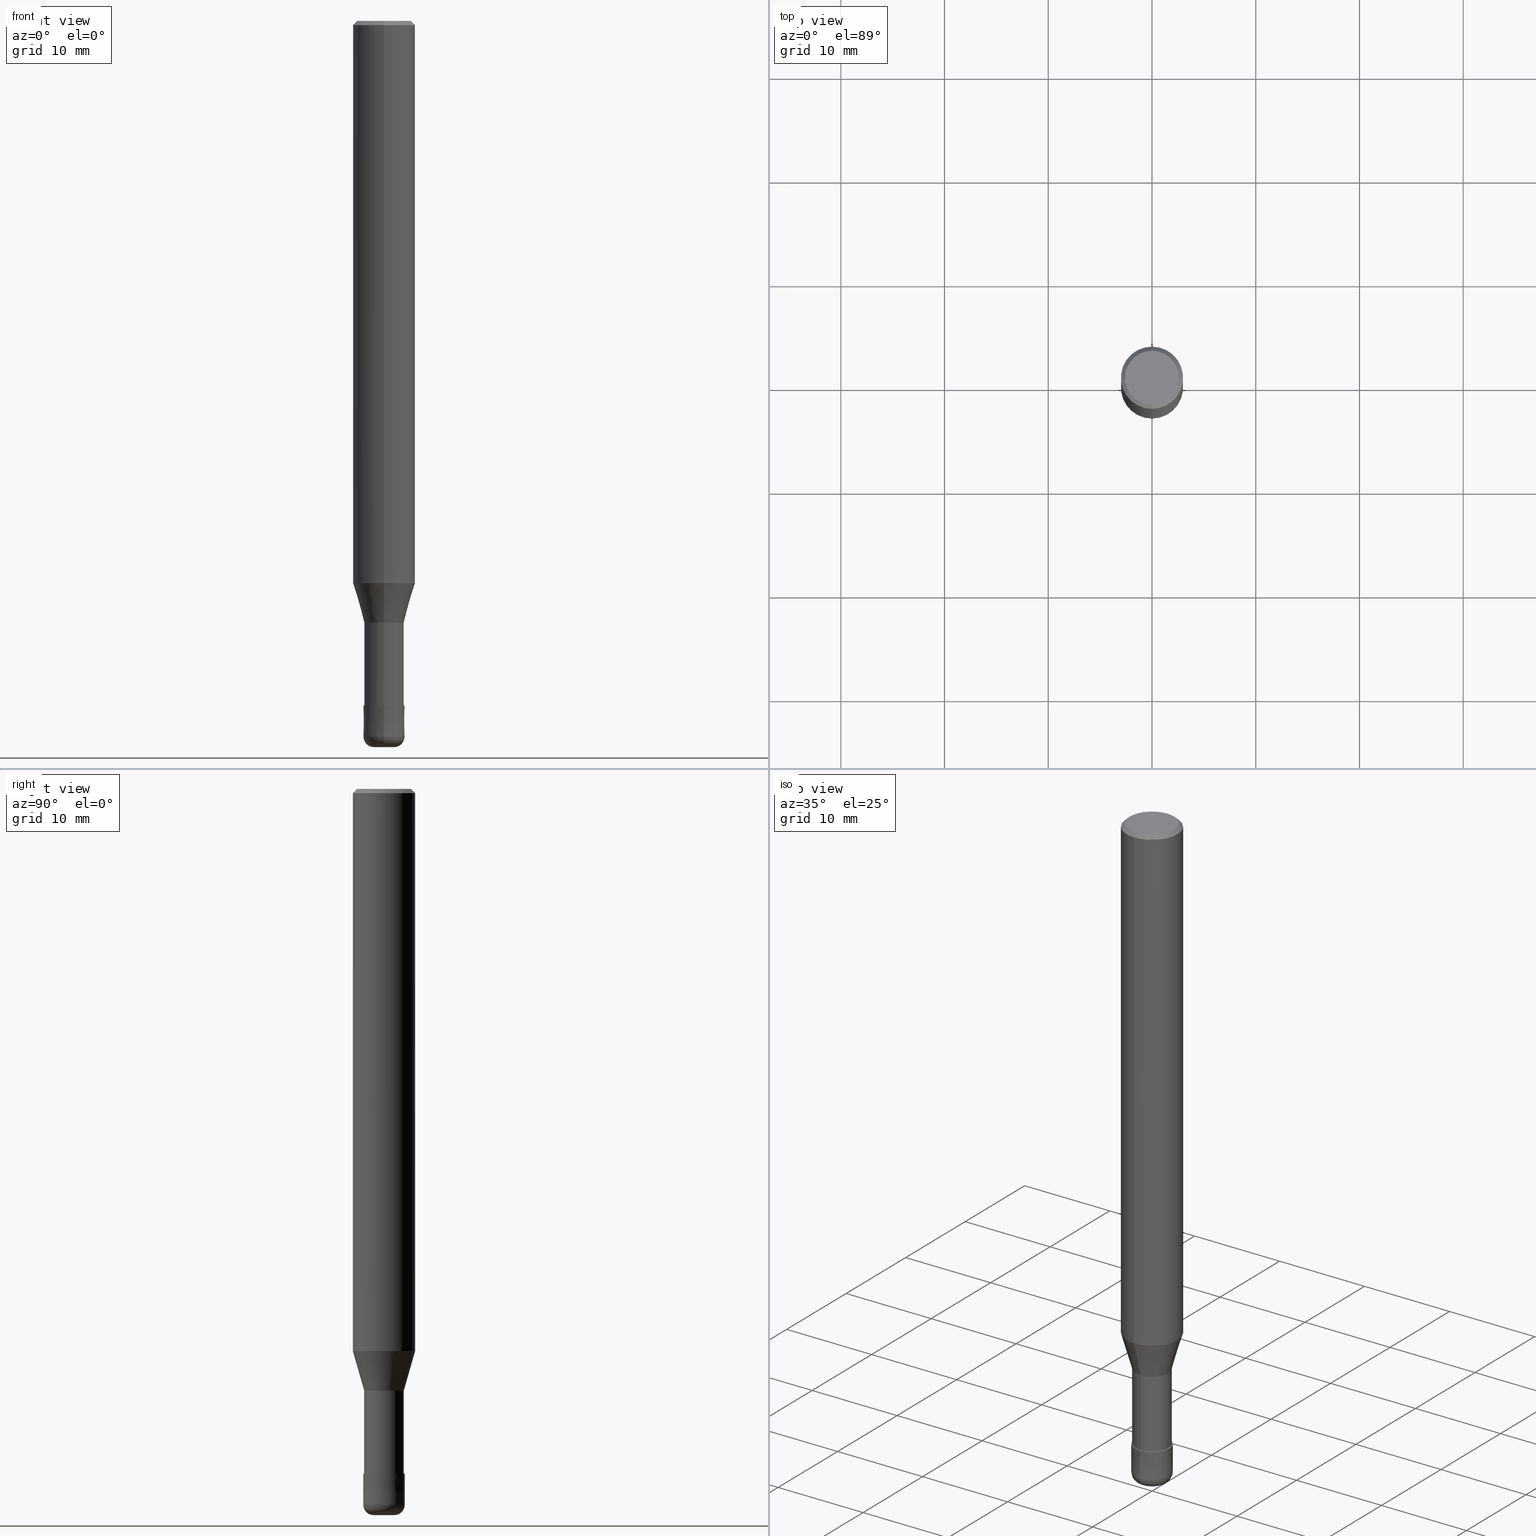
[diagram: canonical four-view strip — front | top / right | iso, engineering-drawing reading convention]
A machine part, canonical four-view strip (front | top / right | iso — engineering-drawing reading convention). The complete STEP part file that produces these views, byte-faithful:
ISO-10303-21;
HEADER;
FILE_DESCRIPTION(('no description'),'unknown implementation level');
FILE_NAME('CRRS4040-10-12-Huellk.stp','  ',('CIMSOURCE GmbH'),('CADClick - KiM GmbH - www.kimweb.de'),'unknown preprocess','ACIS','unknown authorization');
FILE_SCHEMA(('automotive_design'));
ENDSEC;
DATA;
#1=MECHANICAL_DESIGN_GEOMETRIC_PRESENTATION_REPRESENTATION(' ',(#14,#15,#16,#17,#18,#19,#20,#21,#22,#23,#24,#25,#26,#27,#28,#29,#30,#31,#32,#33,#34,#35,#36,#37,#38,#39,#40,#41,#42,#43,#44,#45,#46,#47,#48,#49,#50,#51,#52,#53,#54,#55,#56,#57,#58,#59,#60,#61,#62,#63,#64,#65,#66,#67,#68,#69,#70,#71,#72,#73,#74,#75,#76,#77,#78,#79,#80),#10);
#2=PRODUCT_DEFINITION_CONTEXT('',#81,'design');
#3=APPLICATION_PROTOCOL_DEFINITION('INTERNATIONAL STANDARD','automotive_design',1994,#81);
#4=PRODUCT_CATEGORY_RELATIONSHIP('NONE','NONE',#82,#83);
#5=SHAPE_DEFINITION_REPRESENTATION(#84,#85);
#6=PRODUCT_DEFINITION_CONTEXT('',#86,'design');
#7=APPLICATION_PROTOCOL_DEFINITION('INTERNATIONAL STANDARD','automotive_design',1994,#86);
#8=PRODUCT_CATEGORY_RELATIONSHIP('NONE','NONE',#87,#88);
#9=SHAPE_DEFINITION_REPRESENTATION(#89,#90);
#10= (GEOMETRIC_REPRESENTATION_CONTEXT(3)GLOBAL_UNCERTAINTY_ASSIGNED_CONTEXT((#93))GLOBAL_UNIT_ASSIGNED_CONTEXT((#95,#96,#97))REPRESENTATION_CONTEXT('NONE','WORKSPACE'));
#14=STYLED_ITEM('',(#99),#100);
#15=STYLED_ITEM('',(#101),#102);
#16=STYLED_ITEM('',(#103),#104);
#17=STYLED_ITEM('',(#105),#106);
#18=STYLED_ITEM('',(#107),#108);
#19=STYLED_ITEM('',(#109),#110);
#20=STYLED_ITEM('',(#111),#112);
#21=STYLED_ITEM('',(#113),#114);
#22=STYLED_ITEM('',(#115),#116);
#23=STYLED_ITEM('',(#117),#118);
#24=STYLED_ITEM('',(#119),#120);
#25=STYLED_ITEM('',(#121),#122);
#26=STYLED_ITEM('',(#123),#124);
#27=STYLED_ITEM('',(#125),#126);
#28=STYLED_ITEM('',(#127),#128);
#29=STYLED_ITEM('',(#129),#130);
#30=STYLED_ITEM('',(#131),#132);
#31=STYLED_ITEM('',(#133),#134);
#32=STYLED_ITEM('',(#135),#136);
#33=STYLED_ITEM('',(#137),#138);
#34=STYLED_ITEM('',(#139),#140);
#35=STYLED_ITEM('',(#141),#142);
#36=STYLED_ITEM('',(#143),#144);
#37=STYLED_ITEM('',(#145),#146);
#38=STYLED_ITEM('',(#147),#148);
#39=STYLED_ITEM('',(#149),#150);
#40=STYLED_ITEM('',(#151),#152);
#41=STYLED_ITEM('',(#153),#154);
#42=STYLED_ITEM('',(#155),#156);
#43=STYLED_ITEM('',(#157),#158);
#44=STYLED_ITEM('',(#159),#160);
#45=STYLED_ITEM('',(#161),#162);
#46=STYLED_ITEM('',(#163),#164);
#47=STYLED_ITEM('',(#165),#166);
#48=STYLED_ITEM('',(#167),#168);
#49=STYLED_ITEM('',(#169),#170);
#50=STYLED_ITEM('',(#171),#172);
#51=STYLED_ITEM('',(#173),#174);
#52=STYLED_ITEM('',(#175),#176);
#53=STYLED_ITEM('',(#177),#178);
#54=STYLED_ITEM('',(#179),#180);
#55=STYLED_ITEM('',(#181),#182);
#56=STYLED_ITEM('',(#183),#184);
#57=STYLED_ITEM('',(#185),#186);
#58=STYLED_ITEM('',(#187),#188);
#59=STYLED_ITEM('',(#189),#190);
#60=STYLED_ITEM('',(#191),#192);
#61=STYLED_ITEM('',(#193),#194);
#62=STYLED_ITEM('',(#195),#196);
#63=STYLED_ITEM('',(#197),#198);
#64=STYLED_ITEM('',(#199),#200);
#65=STYLED_ITEM('',(#201),#202);
#66=STYLED_ITEM('',(#203),#204);
#67=STYLED_ITEM('',(#205),#206);
#68=STYLED_ITEM('',(#207),#208);
#69=STYLED_ITEM('',(#209),#210);
#70=STYLED_ITEM('',(#211),#212);
#71=STYLED_ITEM('',(#213),#214);
#72=STYLED_ITEM('',(#215),#216);
#73=STYLED_ITEM('',(#217),#218);
#74=STYLED_ITEM('',(#219),#220);
#75=STYLED_ITEM('',(#221),#222);
#76=STYLED_ITEM('',(#223),#224);
#77=STYLED_ITEM('',(#225),#226);
#78=STYLED_ITEM('',(#227),#228);
#79=STYLED_ITEM('',(#229),#230);
#80=STYLED_ITEM('',(#231),#232);
#81=APPLICATION_CONTEXT(' ');
#82=PRODUCT_CATEGORY('part','NONE');
#83=PRODUCT_RELATED_PRODUCT_CATEGORY('detail',' ',(#233));
#84=PRODUCT_DEFINITION_SHAPE('NONE','NONE',#234);
#85=ADVANCED_BREP_SHAPE_REPRESENTATION('1',(#154,#235),#10);
#86=APPLICATION_CONTEXT(' ');
#87=PRODUCT_CATEGORY('part','NONE');
#88=PRODUCT_RELATED_PRODUCT_CATEGORY('detail',' ',(#236));
#89=PRODUCT_DEFINITION_SHAPE('NONE','NONE',#237);
#90=ADVANCED_BREP_SHAPE_REPRESENTATION('2',(#210,#238),#10);
#93=UNCERTAINTY_MEASURE_WITH_UNIT(LENGTH_MEASURE(1.0E-006),#95,'','');
#95= (CONVERSION_BASED_UNIT('MILLIMETRE',#241)LENGTH_UNIT()NAMED_UNIT(#244));
#96= (NAMED_UNIT(#246)PLANE_ANGLE_UNIT()SI_UNIT($,.RADIAN.));
#97= (NAMED_UNIT(#246)SOLID_ANGLE_UNIT()SI_UNIT($,.STERADIAN.));
#99=PRESENTATION_STYLE_ASSIGNMENT((#252));
#100=EDGE_CURVE('',#172,#140,#253,.T.);
#101=PRESENTATION_STYLE_ASSIGNMENT((#254));
#102=EDGE_CURVE('',#140,#152,#255,.T.);
#103=PRESENTATION_STYLE_ASSIGNMENT((#256));
#104=EDGE_CURVE('',#180,#214,#257,.T.);
#105=PRESENTATION_STYLE_ASSIGNMENT((#258));
#106=ADVANCED_FACE('',(#259),#260,.T.);
#107=PRESENTATION_STYLE_ASSIGNMENT((#261));
#108=ADVANCED_FACE('',(#262),#263,.T.);
#109=PRESENTATION_STYLE_ASSIGNMENT((#264));
#110=EDGE_CURVE('',#214,#180,#265,.T.);
#111=PRESENTATION_STYLE_ASSIGNMENT((#266));
#112=EDGE_CURVE('',#184,#226,#267,.T.);
#113=PRESENTATION_STYLE_ASSIGNMENT((#268));
#114=ADVANCED_FACE('',(#269),#270,.T.);
#115=PRESENTATION_STYLE_ASSIGNMENT((#271));
#116=VERTEX_POINT('',#272);
#117=PRESENTATION_STYLE_ASSIGNMENT((#273));
#118=EDGE_CURVE('',#158,#182,#274,.T.);
#119=PRESENTATION_STYLE_ASSIGNMENT((#275));
#120=EDGE_CURVE('',#126,#212,#276,.T.);
#121=PRESENTATION_STYLE_ASSIGNMENT((#277));
#122=ADVANCED_FACE('',(#278),#279,.T.);
#123=PRESENTATION_STYLE_ASSIGNMENT((#280));
#124=EDGE_CURVE('',#196,#214,#281,.T.);
#125=PRESENTATION_STYLE_ASSIGNMENT((#282));
#126=VERTEX_POINT('',#283);
#127=PRESENTATION_STYLE_ASSIGNMENT((#284));
#128=EDGE_CURVE('',#168,#134,#285,.T.);
#129=PRESENTATION_STYLE_ASSIGNMENT((#286));
#130=ADVANCED_FACE('',(#287),#288,.T.);
#131=PRESENTATION_STYLE_ASSIGNMENT((#289));
#132=EDGE_CURVE('',#126,#182,#290,.T.);
#133=PRESENTATION_STYLE_ASSIGNMENT((#291));
#134=VERTEX_POINT('',#292);
#135=PRESENTATION_STYLE_ASSIGNMENT((#293));
#136=EDGE_CURVE('',#158,#212,#294,.T.);
#137=PRESENTATION_STYLE_ASSIGNMENT((#295));
#138=ADVANCED_FACE('',(#296),#297,.T.);
#139=PRESENTATION_STYLE_ASSIGNMENT((#298));
#140=VERTEX_POINT('',#299);
#141=PRESENTATION_STYLE_ASSIGNMENT((#300));
#142=VERTEX_POINT('',#301);
#143=PRESENTATION_STYLE_ASSIGNMENT((#302));
#144=VERTEX_POINT('',#303);
#145=PRESENTATION_STYLE_ASSIGNMENT((#304));
#146=ADVANCED_FACE('',(#305),#306,.T.);
#147=PRESENTATION_STYLE_ASSIGNMENT((#307));
#148=EDGE_CURVE('',#212,#126,#308,.T.);
#149=PRESENTATION_STYLE_ASSIGNMENT((#309));
#150=EDGE_CURVE('',#142,#158,#310,.T.);
#151=PRESENTATION_STYLE_ASSIGNMENT((#311));
#152=VERTEX_POINT('',#312);
#153=PRESENTATION_STYLE_ASSIGNMENT((#313));
#154=MANIFOLD_SOLID_BREP('1',#314);
#155=PRESENTATION_STYLE_ASSIGNMENT((#315));
#156=EDGE_CURVE('',#180,#226,#316,.T.);
#157=PRESENTATION_STYLE_ASSIGNMENT((#317));
#158=VERTEX_POINT('',#318);
#159=PRESENTATION_STYLE_ASSIGNMENT((#319));
#160=EDGE_CURVE('',#230,#152,#320,.T.);
#161=PRESENTATION_STYLE_ASSIGNMENT((#321));
#162=EDGE_CURVE('',#134,#168,#322,.T.);
#163=PRESENTATION_STYLE_ASSIGNMENT((#323));
#164=ADVANCED_FACE('',(#324),#325,.T.);
#165=PRESENTATION_STYLE_ASSIGNMENT((#326));
#166=EDGE_CURVE('',#152,#168,#327,.T.);
#167=PRESENTATION_STYLE_ASSIGNMENT((#328));
#168=VERTEX_POINT('',#329);
#169=PRESENTATION_STYLE_ASSIGNMENT((#330));
#170=EDGE_CURVE('',#134,#230,#331,.T.);
#171=PRESENTATION_STYLE_ASSIGNMENT((#332));
#172=VERTEX_POINT('',#333);
#173=PRESENTATION_STYLE_ASSIGNMENT((#334));
#174=ADVANCED_FACE('',(#335),#336,.T.);
#175=PRESENTATION_STYLE_ASSIGNMENT((#337));
#176=ADVANCED_FACE('',(#338),#339,.T.);
#177=PRESENTATION_STYLE_ASSIGNMENT((#340));
#178=ADVANCED_FACE('',(#341),#342,.T.);
#179=PRESENTATION_STYLE_ASSIGNMENT((#343));
#180=VERTEX_POINT('',#344);
#181=PRESENTATION_STYLE_ASSIGNMENT((#345));
#182=VERTEX_POINT('',#346);
#183=PRESENTATION_STYLE_ASSIGNMENT((#347));
#184=VERTEX_POINT('',#348);
#185=PRESENTATION_STYLE_ASSIGNMENT((#349));
#186=EDGE_CURVE('',#196,#116,#350,.T.);
#187=PRESENTATION_STYLE_ASSIGNMENT((#351));
#188=ADVANCED_FACE('',(#352),#353,.T.);
#189=PRESENTATION_STYLE_ASSIGNMENT((#354));
#190=EDGE_CURVE('',#230,#172,#355,.T.);
#191=PRESENTATION_STYLE_ASSIGNMENT((#356));
#192=EDGE_CURVE('',#182,#158,#357,.T.);
#193=PRESENTATION_STYLE_ASSIGNMENT((#358));
#194=EDGE_CURVE('',#116,#196,#359,.T.);
#195=PRESENTATION_STYLE_ASSIGNMENT((#360));
#196=VERTEX_POINT('',#361);
#197=PRESENTATION_STYLE_ASSIGNMENT((#362));
#198=EDGE_CURVE('',#144,#142,#363,.T.);
#199=PRESENTATION_STYLE_ASSIGNMENT((#364));
#200=ADVANCED_FACE('',(#365),#366,.T.);
#201=PRESENTATION_STYLE_ASSIGNMENT((#367));
#202=ADVANCED_FACE('',(#368),#369,.T.);
#203=PRESENTATION_STYLE_ASSIGNMENT((#370));
#204=EDGE_CURVE('',#184,#214,#371,.T.);
#205=PRESENTATION_STYLE_ASSIGNMENT((#372));
#206=EDGE_CURVE('',#142,#144,#373,.T.);
#207=PRESENTATION_STYLE_ASSIGNMENT((#374));
#208=ADVANCED_FACE('',(#375),#376,.T.);
#209=PRESENTATION_STYLE_ASSIGNMENT((#377));
#210=MANIFOLD_SOLID_BREP('2',#378);
#211=PRESENTATION_STYLE_ASSIGNMENT((#379));
#212=VERTEX_POINT('',#380);
#213=PRESENTATION_STYLE_ASSIGNMENT((#381));
#214=VERTEX_POINT('',#382);
#215=PRESENTATION_STYLE_ASSIGNMENT((#383));
#216=EDGE_CURVE('',#226,#184,#384,.T.);
#217=PRESENTATION_STYLE_ASSIGNMENT((#385));
#218=ADVANCED_FACE('',(#386),#387,.T.);
#219=PRESENTATION_STYLE_ASSIGNMENT((#388));
#220=ADVANCED_FACE('',(#389,#390),#391,.T.);
#221=PRESENTATION_STYLE_ASSIGNMENT((#392));
#222=EDGE_CURVE('',#180,#116,#393,.T.);
#223=PRESENTATION_STYLE_ASSIGNMENT((#394));
#224=EDGE_CURVE('',#182,#144,#395,.T.);
#225=PRESENTATION_STYLE_ASSIGNMENT((#396));
#226=VERTEX_POINT('',#397);
#227=PRESENTATION_STYLE_ASSIGNMENT((#398));
#228=EDGE_CURVE('',#140,#172,#399,.T.);
#229=PRESENTATION_STYLE_ASSIGNMENT((#400));
#230=VERTEX_POINT('',#401);
#231=PRESENTATION_STYLE_ASSIGNMENT((#402));
#232=EDGE_CURVE('',#152,#230,#403,.T.);
#233=PRODUCT('1','1','PART-1-DESC',(#404));
#234=PRODUCT_DEFINITION('NONE','NONE',#405,#2);
#235=AXIS2_PLACEMENT_3D('',#406,#407,#408);
#236=PRODUCT('2','2','PART-2-DESC',(#409));
#237=PRODUCT_DEFINITION('NONE','NONE',#410,#6);
#238=AXIS2_PLACEMENT_3D('',#411,#412,#413);
#241=LENGTH_MEASURE_WITH_UNIT(LENGTH_MEASURE(1.0),#414);
#244=DIMENSIONAL_EXPONENTS(1.0,0.0,0.0,0.0,0.0,0.0,0.0);
#246=DIMENSIONAL_EXPONENTS(0.0,0.0,0.0,0.0,0.0,0.0,0.0);
#252=CURVE_STYLE('',#415,POSITIVE_LENGTH_MEASURE(1.0E-006),#416);
#253=CIRCLE('',#417,3.0);
#254=CURVE_STYLE('',#418,POSITIVE_LENGTH_MEASURE(1.0E-006),#419);
#255=LINE('',#420,#421);
#256=CURVE_STYLE('',#422,POSITIVE_LENGTH_MEASURE(1.0E-006),#423);
#257=CIRCLE('',#424,2.0);
#258=SURFACE_STYLE_USAGE(.BOTH.,#425);
#259=FACE_OUTER_BOUND('',#426,.T.);
#260=PLANE('',#427);
#261=SURFACE_STYLE_USAGE(.BOTH.,#428);
#262=FACE_OUTER_BOUND('',#429,.T.);
#263=CONICAL_SURFACE('',#430,1.99995,3.3333333320984E-005);
#264=CURVE_STYLE('',#431,POSITIVE_LENGTH_MEASURE(1.0E-006),#432);
#265=CIRCLE('',#433,2.0);
#266=CURVE_STYLE('',#434,POSITIVE_LENGTH_MEASURE(1.0E-006),#435);
#267=CIRCLE('',#436,1.9999);
#268=SURFACE_STYLE_USAGE(.BOTH.,#437);
#269=FACE_OUTER_BOUND('',#438,.T.);
#270=CONICAL_SURFACE('',#439,2.8,0.78539816339745);
#271=POINT_STYLE(' ',#440,POSITIVE_LENGTH_MEASURE(1.0E-006),#441);
#272=CARTESIAN_POINT('',(1.22460635382238E-016,-1.0,-70.0));
#273=CURVE_STYLE('',#442,POSITIVE_LENGTH_MEASURE(1.0E-006),#443);
#274=CIRCLE('',#444,1.90995);
#275=CURVE_STYLE('',#445,POSITIVE_LENGTH_MEASURE(1.0E-006),#446);
#276=CIRCLE('',#447,1.90995);
#277=SURFACE_STYLE_USAGE(.BOTH.,#448);
#278=FACE_OUTER_BOUND('',#449,.T.);
#279=PLANE('',#450);
#280=CURVE_STYLE('',#451,POSITIVE_LENGTH_MEASURE(1.0E-006),#452);
#281=CIRCLE('',#453,1.0);
#282=POINT_STYLE(' ',#454,POSITIVE_LENGTH_MEASURE(1.0E-006),#455);
#283=CARTESIAN_POINT('',(2.33893690548305E-016,-1.90995,-66.0));
#284=CURVE_STYLE('',#456,POSITIVE_LENGTH_MEASURE(1.0E-006),#457);
#285=CIRCLE('',#458,2.6);
#286=SURFACE_STYLE_USAGE(.BOTH.,#459);
#287=FACE_OUTER_BOUND('',#460,.T.);
#288=CYLINDRICAL_SURFACE('',#461,3.0);
#289=CURVE_STYLE('',#462,POSITIVE_LENGTH_MEASURE(1.0E-006),#463);
#290=LINE('',#464,#465);
#291=POINT_STYLE(' ',#466,POSITIVE_LENGTH_MEASURE(1.0E-006),#467);
#292=CARTESIAN_POINT('',(0.0,2.6,0.0));
#293=CURVE_STYLE('',#468,POSITIVE_LENGTH_MEASURE(1.0E-006),#469);
#294=LINE('',#470,#471);
#295=SURFACE_STYLE_USAGE(.BOTH.,#472);
#296=FACE_OUTER_BOUND('',#473,.T.);
#297=CONICAL_SURFACE('',#474,2.45495,0.279272319969089);
#298=POINT_STYLE(' ',#475,POSITIVE_LENGTH_MEASURE(1.0E-006),#476);
#299=CARTESIAN_POINT('',(3.67381906146713E-016,-3.0,-54.199));
#300=POINT_STYLE(' ',#477,POSITIVE_LENGTH_MEASURE(1.0E-006),#478);
#301=CARTESIAN_POINT('',(0.0,2.99995,-54.199));
#302=POINT_STYLE(' ',#479,POSITIVE_LENGTH_MEASURE(1.0E-006),#480);
#303=CARTESIAN_POINT('',(3.67375783114944E-016,-2.99995,-54.199));
#304=SURFACE_STYLE_USAGE(.BOTH.,#481);
#305=FACE_OUTER_BOUND('',#482,.T.);
#306=CYLINDRICAL_SURFACE('',#483,1.90995);
#307=CURVE_STYLE('',#484,POSITIVE_LENGTH_MEASURE(1.0E-006),#485);
#308=CIRCLE('',#486,1.90995);
#309=CURVE_STYLE('',#487,POSITIVE_LENGTH_MEASURE(1.0E-006),#488);
#310=LINE('',#489,#490);
#311=POINT_STYLE(' ',#491,POSITIVE_LENGTH_MEASURE(1.0E-006),#492);
#312=CARTESIAN_POINT('',(3.67381906146713E-016,-3.0,-0.399999999999999));
#313=SURFACE_STYLE_USAGE(.BOTH.,#493);
#314=CLOSED_SHELL('',(#146,#200,#164,#114,#220,#174,#188,#130,#138,#218,#176));
#315=CURVE_STYLE('',#494,POSITIVE_LENGTH_MEASURE(1.0E-006),#495);
#316=LINE('',#496,#497);
#317=POINT_STYLE(' ',#498,POSITIVE_LENGTH_MEASURE(1.0E-006),#499);
#318=CARTESIAN_POINT('',(0.0,1.90995,-58.0));
#319=CURVE_STYLE('',#500,POSITIVE_LENGTH_MEASURE(1.0E-006),#501);
#320=CIRCLE('',#502,3.0);
#321=CURVE_STYLE('',#503,POSITIVE_LENGTH_MEASURE(1.0E-006),#504);
#322=CIRCLE('',#505,2.6);
#323=SURFACE_STYLE_USAGE(.BOTH.,#506);
#324=FACE_OUTER_BOUND('',#507,.T.);
#325=CYLINDRICAL_SURFACE('',#508,3.0);
#326=CURVE_STYLE('',#509,POSITIVE_LENGTH_MEASURE(1.0E-006),#510);
#327=LINE('',#511,#512);
#328=POINT_STYLE(' ',#513,POSITIVE_LENGTH_MEASURE(1.0E-006),#514);
#329=CARTESIAN_POINT('',(3.18397651993818E-016,-2.6,0.0));
#330=CURVE_STYLE('',#515,POSITIVE_LENGTH_MEASURE(1.0E-006),#516);
#331=LINE('',#517,#518);
#332=POINT_STYLE(' ',#519,POSITIVE_LENGTH_MEASURE(1.0E-006),#520);
#333=CARTESIAN_POINT('',(0.0,3.0,-54.199));
#334=SURFACE_STYLE_USAGE(.BOTH.,#521);
#335=FACE_OUTER_BOUND('',#522,.T.);
#336=PLANE('',#523);
#337=SURFACE_STYLE_USAGE(.BOTH.,#524);
#338=FACE_OUTER_BOUND('',#525,.T.);
#339=PLANE('',#526);
#340=SURFACE_STYLE_USAGE(.BOTH.,#527);
#341=FACE_OUTER_BOUND('',#528,.T.);
#342=TOROIDAL_SURFACE('',#529,0.999999999999999,1.0);
#343=POINT_STYLE(' ',#530,POSITIVE_LENGTH_MEASURE(1.0E-006),#531);
#344=CARTESIAN_POINT('',(2.44921270764475E-016,-2.0,-69.0));
#345=POINT_STYLE(' ',#532,POSITIVE_LENGTH_MEASURE(1.0E-006),#533);
#346=CARTESIAN_POINT('',(2.33893690548305E-016,-1.90995,-58.0));
#347=POINT_STYLE(' ',#534,POSITIVE_LENGTH_MEASURE(1.0E-006),#535);
#348=CARTESIAN_POINT('',(0.0,1.9999,-66.0));
#349=CURVE_STYLE('',#536,POSITIVE_LENGTH_MEASURE(1.0E-006),#537);
#350=CIRCLE('',#538,1.0);
#351=SURFACE_STYLE_USAGE(.BOTH.,#539);
#352=FACE_OUTER_BOUND('',#540,.T.);
#353=CONICAL_SURFACE('',#541,2.8,0.78539816339745);
#354=CURVE_STYLE('',#542,POSITIVE_LENGTH_MEASURE(1.0E-006),#543);
#355=LINE('',#544,#545);
#356=CURVE_STYLE('',#546,POSITIVE_LENGTH_MEASURE(1.0E-006),#547);
#357=CIRCLE('',#548,1.90995);
#358=CURVE_STYLE('',#549,POSITIVE_LENGTH_MEASURE(1.0E-006),#550);
#359=CIRCLE('',#551,1.0);
#360=POINT_STYLE(' ',#552,POSITIVE_LENGTH_MEASURE(1.0E-006),#553);
#361=CARTESIAN_POINT('',(0.0,1.0,-70.0));
#362=CURVE_STYLE('',#554,POSITIVE_LENGTH_MEASURE(1.0E-006),#555);
#363=CIRCLE('',#556,2.99995);
#364=SURFACE_STYLE_USAGE(.BOTH.,#557);
#365=FACE_OUTER_BOUND('',#558,.T.);
#366=CONICAL_SURFACE('',#559,2.45495,0.279272319969089);
#367=SURFACE_STYLE_USAGE(.BOTH.,#560);
#368=FACE_OUTER_BOUND('',#561,.T.);
#369=TOROIDAL_SURFACE('',#562,0.999999999999999,1.0);
#370=CURVE_STYLE('',#563,POSITIVE_LENGTH_MEASURE(1.0E-006),#564);
#371=LINE('',#565,#566);
#372=CURVE_STYLE('',#567,POSITIVE_LENGTH_MEASURE(1.0E-006),#568);
#373=CIRCLE('',#569,2.99995);
#374=SURFACE_STYLE_USAGE(.BOTH.,#570);
#375=FACE_OUTER_BOUND('',#571,.T.);
#376=CONICAL_SURFACE('',#572,1.99995,3.3333333320984E-005);
#377=SURFACE_STYLE_USAGE(.BOTH.,#573);
#378=CLOSED_SHELL('',(#178,#108,#106,#208,#202,#122));
#379=POINT_STYLE(' ',#574,POSITIVE_LENGTH_MEASURE(1.0E-006),#575);
#380=CARTESIAN_POINT('',(0.0,1.90995,-66.0));
#381=POINT_STYLE(' ',#576,POSITIVE_LENGTH_MEASURE(1.0E-006),#577);
#382=CARTESIAN_POINT('',(0.0,2.0,-69.0));
#383=CURVE_STYLE('',#578,POSITIVE_LENGTH_MEASURE(1.0E-006),#579);
#384=CIRCLE('',#580,1.9999);
#385=SURFACE_STYLE_USAGE(.BOTH.,#581);
#386=FACE_OUTER_BOUND('',#582,.T.);
#387=CYLINDRICAL_SURFACE('',#583,1.90995);
#388=SURFACE_STYLE_USAGE(.BOTH.,#584);
#389=FACE_OUTER_BOUND('',#585,.T.);
#390=FACE_BOUND('',#586,.T.);
#391=PLANE('',#587);
#392=CURVE_STYLE('',#588,POSITIVE_LENGTH_MEASURE(1.0E-006),#589);
#393=CIRCLE('',#590,1.0);
#394=CURVE_STYLE('',#591,POSITIVE_LENGTH_MEASURE(1.0E-006),#592);
#395=LINE('',#593,#594);
#396=POINT_STYLE(' ',#595,POSITIVE_LENGTH_MEASURE(1.0E-006),#596);
#397=CARTESIAN_POINT('',(2.44909024700937E-016,-1.9999,-66.0));
#398=CURVE_STYLE('',#597,POSITIVE_LENGTH_MEASURE(1.0E-006),#598);
#399=CIRCLE('',#599,3.0);
#400=POINT_STYLE(' ',#600,POSITIVE_LENGTH_MEASURE(1.0E-006),#601);
#401=CARTESIAN_POINT('',(0.0,3.0,-0.399999999999999));
#402=CURVE_STYLE('',#602,POSITIVE_LENGTH_MEASURE(1.0E-006),#603);
#403=CIRCLE('',#604,3.0);
#404=PRODUCT_CONTEXT('',#81,'mechanical');
#405=PRODUCT_DEFINITION_FORMATION_WITH_SPECIFIED_SOURCE(' ','NONE',#233,.NOT_KNOWN.);
#406=CARTESIAN_POINT('',(0.0,0.0,0.0));
#407=DIRECTION('',(0.0,0.0,1.0));
#408=DIRECTION('',(1.0,0.0,0.0));
#409=PRODUCT_CONTEXT('',#86,'mechanical');
#410=PRODUCT_DEFINITION_FORMATION_WITH_SPECIFIED_SOURCE(' ','NONE',#236,.NOT_KNOWN.);
#411=CARTESIAN_POINT('',(0.0,0.0,0.0));
#412=DIRECTION('',(0.0,0.0,1.0));
#413=DIRECTION('',(1.0,0.0,0.0));
#414= (NAMED_UNIT(#244)LENGTH_UNIT()SI_UNIT(.MILLI.,.METRE.));
#415=DRAUGHTING_PRE_DEFINED_CURVE_FONT('continuous');
#416=COLOUR_RGB('',0.498039215803146,0.498039215803146,0.498039215803146);
#417=AXIS2_PLACEMENT_3D('',#606,#607,#608);
#418=DRAUGHTING_PRE_DEFINED_CURVE_FONT('continuous');
#419=COLOUR_RGB('',0.498039215803146,0.498039215803146,0.498039215803146);
#420=CARTESIAN_POINT('',(3.67381906146713E-016,-3.0,-27.2995));
#421=VECTOR('',#609,1.0);
#422=DRAUGHTING_PRE_DEFINED_CURVE_FONT('continuous');
#423=COLOUR_RGB('',0.800000011920929,0.800000011920929,0.800000011920929);
#424=AXIS2_PLACEMENT_3D('',#610,#611,#612);
#425=SURFACE_SIDE_STYLE('',(#613));
#426=EDGE_LOOP('',(#614,#615));
#427=AXIS2_PLACEMENT_3D('',#616,#617,#618);
#428=SURFACE_SIDE_STYLE('',(#619));
#429=EDGE_LOOP('',(#620,#621,#622,#623));
#430=AXIS2_PLACEMENT_3D('',#624,#625,#626);
#431=DRAUGHTING_PRE_DEFINED_CURVE_FONT('continuous');
#432=COLOUR_RGB('',0.800000011920929,0.800000011920929,0.800000011920929);
#433=AXIS2_PLACEMENT_3D('',#627,#628,#629);
#434=DRAUGHTING_PRE_DEFINED_CURVE_FONT('continuous');
#435=COLOUR_RGB('',0.800000011920929,0.800000011920929,0.800000011920929);
#436=AXIS2_PLACEMENT_3D('',#630,#631,#632);
#437=SURFACE_SIDE_STYLE('',(#633));
#438=EDGE_LOOP('',(#634,#635,#636,#637));
#439=AXIS2_PLACEMENT_3D('',#638,#639,#640);
#440=PRE_DEFINED_MARKER('');
#441=COLOUR_RGB('',0.800000011920929,0.800000011920929,0.800000011920929);
#442=DRAUGHTING_PRE_DEFINED_CURVE_FONT('continuous');
#443=COLOUR_RGB('',0.498039215803146,0.498039215803146,0.498039215803146);
#444=AXIS2_PLACEMENT_3D('',#641,#642,#643);
#445=DRAUGHTING_PRE_DEFINED_CURVE_FONT('continuous');
#446=COLOUR_RGB('',0.498039215803146,0.498039215803146,0.498039215803146);
#447=AXIS2_PLACEMENT_3D('',#644,#645,#646);
#448=SURFACE_SIDE_STYLE('',(#647));
#449=EDGE_LOOP('',(#648,#649));
#450=AXIS2_PLACEMENT_3D('',#650,#651,#652);
#451=DRAUGHTING_PRE_DEFINED_CURVE_FONT('continuous');
#452=COLOUR_RGB('',0.800000011920929,0.800000011920929,0.800000011920929);
#453=AXIS2_PLACEMENT_3D('',#653,#654,#655);
#454=PRE_DEFINED_MARKER('');
#455=COLOUR_RGB('',0.498039215803146,0.498039215803146,0.498039215803146);
#456=DRAUGHTING_PRE_DEFINED_CURVE_FONT('continuous');
#457=COLOUR_RGB('',0.498039215803146,0.498039215803146,0.498039215803146);
#458=AXIS2_PLACEMENT_3D('',#656,#657,#658);
#459=SURFACE_SIDE_STYLE('',(#659));
#460=EDGE_LOOP('',(#660,#661,#662,#663));
#461=AXIS2_PLACEMENT_3D('',#664,#665,#666);
#462=DRAUGHTING_PRE_DEFINED_CURVE_FONT('continuous');
#463=COLOUR_RGB('',0.498039215803146,0.498039215803146,0.498039215803146);
#464=CARTESIAN_POINT('',(2.33893690548305E-016,-1.90995,-62.0));
#465=VECTOR('',#667,1.0);
#466=PRE_DEFINED_MARKER('');
#467=COLOUR_RGB('',0.498039215803146,0.498039215803146,0.498039215803146);
#468=DRAUGHTING_PRE_DEFINED_CURVE_FONT('continuous');
#469=COLOUR_RGB('',0.498039215803146,0.498039215803146,0.498039215803146);
#470=CARTESIAN_POINT('',(-2.33893690548305E-016,1.90995,-62.0));
#471=VECTOR('',#668,1.0);
#472=SURFACE_SIDE_STYLE('',(#669));
#473=EDGE_LOOP('',(#670,#671,#672,#673));
#474=AXIS2_PLACEMENT_3D('',#674,#675,#676);
#475=PRE_DEFINED_MARKER('');
#476=COLOUR_RGB('',0.498039215803146,0.498039215803146,0.498039215803146);
#477=PRE_DEFINED_MARKER('');
#478=COLOUR_RGB('',0.498039215803146,0.498039215803146,0.498039215803146);
#479=PRE_DEFINED_MARKER('');
#480=COLOUR_RGB('',0.498039215803146,0.498039215803146,0.498039215803146);
#481=SURFACE_SIDE_STYLE('',(#677));
#482=EDGE_LOOP('',(#678,#679,#680,#681));
#483=AXIS2_PLACEMENT_3D('',#682,#683,#684);
#484=DRAUGHTING_PRE_DEFINED_CURVE_FONT('continuous');
#485=COLOUR_RGB('',0.498039215803146,0.498039215803146,0.498039215803146);
#486=AXIS2_PLACEMENT_3D('',#685,#686,#687);
#487=DRAUGHTING_PRE_DEFINED_CURVE_FONT('continuous');
#488=COLOUR_RGB('',0.498039215803146,0.498039215803146,0.498039215803146);
#489=CARTESIAN_POINT('',(-3.00634736831625E-016,2.45495,-56.0995));
#490=VECTOR('',#688,1.0);
#491=PRE_DEFINED_MARKER('');
#492=COLOUR_RGB('',0.498039215803146,0.498039215803146,0.498039215803146);
#493=SURFACE_SIDE_STYLE('',(#689));
#494=DRAUGHTING_PRE_DEFINED_CURVE_FONT('continuous');
#495=COLOUR_RGB('',0.800000011920929,0.800000011920929,0.800000011920929);
#496=CARTESIAN_POINT('',(2.44915147732706E-016,-1.99995,-67.5));
#497=VECTOR('',#690,1.0);
#498=PRE_DEFINED_MARKER('');
#499=COLOUR_RGB('',0.498039215803146,0.498039215803146,0.498039215803146);
#500=DRAUGHTING_PRE_DEFINED_CURVE_FONT('continuous');
#501=COLOUR_RGB('',0.498039215803146,0.498039215803146,0.498039215803146);
#502=AXIS2_PLACEMENT_3D('',#691,#692,#693);
#503=DRAUGHTING_PRE_DEFINED_CURVE_FONT('continuous');
#504=COLOUR_RGB('',0.498039215803146,0.498039215803146,0.498039215803146);
#505=AXIS2_PLACEMENT_3D('',#694,#695,#696);
#506=SURFACE_SIDE_STYLE('',(#697));
#507=EDGE_LOOP('',(#698,#699,#700,#701));
#508=AXIS2_PLACEMENT_3D('',#702,#703,#704);
#509=DRAUGHTING_PRE_DEFINED_CURVE_FONT('continuous');
#510=COLOUR_RGB('',0.498039215803146,0.498039215803146,0.498039215803146);
#511=CARTESIAN_POINT('',(3.42889779070266E-016,-2.8,-0.199999999999996));
#512=VECTOR('',#705,1.0);
#513=PRE_DEFINED_MARKER('');
#514=COLOUR_RGB('',0.498039215803146,0.498039215803146,0.498039215803146);
#515=DRAUGHTING_PRE_DEFINED_CURVE_FONT('continuous');
#516=COLOUR_RGB('',0.498039215803146,0.498039215803146,0.498039215803146);
#517=CARTESIAN_POINT('',(-3.42889779070266E-016,2.8,-0.199999999999996));
#518=VECTOR('',#706,1.0);
#519=PRE_DEFINED_MARKER('');
#520=COLOUR_RGB('',0.498039215803146,0.498039215803146,0.498039215803146);
#521=SURFACE_SIDE_STYLE('',(#707));
#522=EDGE_LOOP('',(#708,#709));
#523=AXIS2_PLACEMENT_3D('',#710,#711,#712);
#524=SURFACE_SIDE_STYLE('',(#713));
#525=EDGE_LOOP('',(#714,#715));
#526=AXIS2_PLACEMENT_3D('',#716,#717,#718);
#527=SURFACE_SIDE_STYLE('',(#719));
#528=EDGE_LOOP('',(#720,#721,#722,#723));
#529=AXIS2_PLACEMENT_3D('',#724,#725,#726);
#530=PRE_DEFINED_MARKER('');
#531=COLOUR_RGB('',0.800000011920929,0.800000011920929,0.800000011920929);
#532=PRE_DEFINED_MARKER('');
#533=COLOUR_RGB('',0.498039215803146,0.498039215803146,0.498039215803146);
#534=PRE_DEFINED_MARKER('');
#535=COLOUR_RGB('',0.800000011920929,0.800000011920929,0.800000011920929);
#536=DRAUGHTING_PRE_DEFINED_CURVE_FONT('continuous');
#537=COLOUR_RGB('',0.800000011920929,0.800000011920929,0.800000011920929);
#538=AXIS2_PLACEMENT_3D('',#727,#728,#729);
#539=SURFACE_SIDE_STYLE('',(#730));
#540=EDGE_LOOP('',(#731,#732,#733,#734));
#541=AXIS2_PLACEMENT_3D('',#735,#736,#737);
#542=DRAUGHTING_PRE_DEFINED_CURVE_FONT('continuous');
#543=COLOUR_RGB('',0.498039215803146,0.498039215803146,0.498039215803146);
#544=CARTESIAN_POINT('',(-3.67381906146713E-016,3.0,-27.2995));
#545=VECTOR('',#738,1.0);
#546=DRAUGHTING_PRE_DEFINED_CURVE_FONT('continuous');
#547=COLOUR_RGB('',0.498039215803146,0.498039215803146,0.498039215803146);
#548=AXIS2_PLACEMENT_3D('',#739,#740,#741);
#549=DRAUGHTING_PRE_DEFINED_CURVE_FONT('continuous');
#550=COLOUR_RGB('',0.800000011920929,0.800000011920929,0.800000011920929);
#551=AXIS2_PLACEMENT_3D('',#742,#743,#744);
#552=PRE_DEFINED_MARKER('');
#553=COLOUR_RGB('',0.800000011920929,0.800000011920929,0.800000011920929);
#554=DRAUGHTING_PRE_DEFINED_CURVE_FONT('continuous');
#555=COLOUR_RGB('',0.498039215803146,0.498039215803146,0.498039215803146);
#556=AXIS2_PLACEMENT_3D('',#745,#746,#747);
#557=SURFACE_SIDE_STYLE('',(#748));
#558=EDGE_LOOP('',(#749,#750,#751,#752));
#559=AXIS2_PLACEMENT_3D('',#753,#754,#755);
#560=SURFACE_SIDE_STYLE('',(#756));
#561=EDGE_LOOP('',(#757,#758,#759,#760));
#562=AXIS2_PLACEMENT_3D('',#761,#762,#763);
#563=DRAUGHTING_PRE_DEFINED_CURVE_FONT('continuous');
#564=COLOUR_RGB('',0.800000011920929,0.800000011920929,0.800000011920929);
#565=CARTESIAN_POINT('',(-2.44915147732706E-016,1.99995,-67.5));
#566=VECTOR('',#764,1.0);
#567=DRAUGHTING_PRE_DEFINED_CURVE_FONT('continuous');
#568=COLOUR_RGB('',0.498039215803146,0.498039215803146,0.498039215803146);
#569=AXIS2_PLACEMENT_3D('',#765,#766,#767);
#570=SURFACE_SIDE_STYLE('',(#768));
#571=EDGE_LOOP('',(#769,#770,#771,#772));
#572=AXIS2_PLACEMENT_3D('',#773,#774,#775);
#573=SURFACE_SIDE_STYLE('',(#776));
#574=PRE_DEFINED_MARKER('');
#575=COLOUR_RGB('',0.498039215803146,0.498039215803146,0.498039215803146);
#576=PRE_DEFINED_MARKER('');
#577=COLOUR_RGB('',0.800000011920929,0.800000011920929,0.800000011920929);
#578=DRAUGHTING_PRE_DEFINED_CURVE_FONT('continuous');
#579=COLOUR_RGB('',0.800000011920929,0.800000011920929,0.800000011920929);
#580=AXIS2_PLACEMENT_3D('',#777,#778,#779);
#581=SURFACE_SIDE_STYLE('',(#780));
#582=EDGE_LOOP('',(#781,#782,#783,#784));
#583=AXIS2_PLACEMENT_3D('',#785,#786,#787);
#584=SURFACE_SIDE_STYLE('',(#788));
#585=EDGE_LOOP('',(#789,#790));
#586=EDGE_LOOP('',(#791,#792));
#587=AXIS2_PLACEMENT_3D('',#793,#794,#795);
#588=DRAUGHTING_PRE_DEFINED_CURVE_FONT('continuous');
#589=COLOUR_RGB('',0.800000011920929,0.800000011920929,0.800000011920929);
#590=AXIS2_PLACEMENT_3D('',#796,#797,#798);
#591=DRAUGHTING_PRE_DEFINED_CURVE_FONT('continuous');
#592=COLOUR_RGB('',0.498039215803146,0.498039215803146,0.498039215803146);
#593=CARTESIAN_POINT('',(3.00634736831625E-016,-2.45495,-56.0995));
#594=VECTOR('',#799,1.0);
#595=PRE_DEFINED_MARKER('');
#596=COLOUR_RGB('',0.800000011920929,0.800000011920929,0.800000011920929);
#597=DRAUGHTING_PRE_DEFINED_CURVE_FONT('continuous');
#598=COLOUR_RGB('',0.498039215803146,0.498039215803146,0.498039215803146);
#599=AXIS2_PLACEMENT_3D('',#800,#801,#802);
#600=PRE_DEFINED_MARKER('');
#601=COLOUR_RGB('',0.498039215803146,0.498039215803146,0.498039215803146);
#602=DRAUGHTING_PRE_DEFINED_CURVE_FONT('continuous');
#603=COLOUR_RGB('',0.498039215803146,0.498039215803146,0.498039215803146);
#604=AXIS2_PLACEMENT_3D('',#803,#804,#805);
#606=CARTESIAN_POINT('',(0.0,0.0,-54.199));
#607=DIRECTION('',(0.0,0.0,-1.0));
#608=DIRECTION('',(0.0,1.0,0.0));
#609=DIRECTION('',(-0.0,-0.0,1.0));
#610=CARTESIAN_POINT('',(0.0,0.0,-69.0));
#611=DIRECTION('',(0.0,0.0,-1.0));
#612=DIRECTION('',(0.0,1.0,0.0));
#613=SURFACE_STYLE_FILL_AREA(#806);
#614=ORIENTED_EDGE('',*,*,#112,.F.);
#615=ORIENTED_EDGE('',*,*,#216,.F.);
#616=CARTESIAN_POINT('',(0.0,0.99995,-66.0));
#617=DIRECTION('',(-0.0,0.0,1.0));
#618=DIRECTION('',(0.0,-1.0,0.0));
#619=SURFACE_STYLE_FILL_AREA(#807);
#620=ORIENTED_EDGE('',*,*,#204,.F.);
#621=ORIENTED_EDGE('',*,*,#112,.T.);
#622=ORIENTED_EDGE('',*,*,#156,.F.);
#623=ORIENTED_EDGE('',*,*,#110,.F.);
#624=CARTESIAN_POINT('',(0.0,0.0,-67.5));
#625=DIRECTION('',(0.0,-0.0,-1.0));
#626=DIRECTION('',(0.0,1.0,0.0));
#627=CARTESIAN_POINT('',(0.0,0.0,-69.0));
#628=DIRECTION('',(0.0,0.0,-1.0));
#629=DIRECTION('',(0.0,1.0,0.0));
#630=CARTESIAN_POINT('',(0.0,0.0,-66.0));
#631=DIRECTION('',(0.0,0.0,-1.0));
#632=DIRECTION('',(0.0,1.0,0.0));
#633=SURFACE_STYLE_FILL_AREA(#808);
#634=ORIENTED_EDGE('',*,*,#170,.F.);
#635=ORIENTED_EDGE('',*,*,#162,.T.);
#636=ORIENTED_EDGE('',*,*,#166,.F.);
#637=ORIENTED_EDGE('',*,*,#160,.F.);
#638=CARTESIAN_POINT('',(0.0,0.0,-0.199999999999996));
#639=DIRECTION('',(0.0,-0.0,-1.0));
#640=DIRECTION('',(0.0,1.0,0.0));
#641=CARTESIAN_POINT('',(0.0,0.0,-58.0));
#642=DIRECTION('',(0.0,0.0,-1.0));
#643=DIRECTION('',(0.0,1.0,0.0));
#644=CARTESIAN_POINT('',(0.0,0.0,-66.0));
#645=DIRECTION('',(0.0,0.0,-1.0));
#646=DIRECTION('',(0.0,1.0,0.0));
#647=SURFACE_STYLE_FILL_AREA(#809);
#648=ORIENTED_EDGE('',*,*,#186,.T.);
#649=ORIENTED_EDGE('',*,*,#194,.T.);
#650=CARTESIAN_POINT('',(0.0,0.5,-70.0));
#651=DIRECTION('',(0.0,0.0,-1.0));
#652=DIRECTION('',(0.0,1.0,0.0));
#653=CARTESIAN_POINT('',(-1.22460635382238E-016,0.999999999999999,-69.0));
#654=DIRECTION('',(1.0,1.22460635382238E-016,0.0));
#655=DIRECTION('',(-1.22460635382238E-016,1.0,0.0));
#656=CARTESIAN_POINT('',(0.0,0.0,0.0));
#657=DIRECTION('',(0.0,0.0,-1.0));
#658=DIRECTION('',(0.0,1.0,0.0));
#659=SURFACE_STYLE_FILL_AREA(#810);
#660=ORIENTED_EDGE('',*,*,#190,.T.);
#661=ORIENTED_EDGE('',*,*,#228,.F.);
#662=ORIENTED_EDGE('',*,*,#102,.T.);
#663=ORIENTED_EDGE('',*,*,#232,.T.);
#664=CARTESIAN_POINT('',(0.0,0.0,-27.2995));
#665=DIRECTION('',(-0.0,-0.0,1.0));
#666=DIRECTION('',(0.0,1.0,0.0));
#667=DIRECTION('',(-0.0,-0.0,1.0));
#668=DIRECTION('',(0.0,0.0,-1.0));
#669=SURFACE_STYLE_FILL_AREA(#811);
#670=ORIENTED_EDGE('',*,*,#150,.T.);
#671=ORIENTED_EDGE('',*,*,#192,.F.);
#672=ORIENTED_EDGE('',*,*,#224,.T.);
#673=ORIENTED_EDGE('',*,*,#198,.T.);
#674=CARTESIAN_POINT('',(0.0,0.0,-56.0995));
#675=DIRECTION('',(-0.0,-0.0,1.0));
#676=DIRECTION('',(0.0,1.0,0.0));
#677=SURFACE_STYLE_FILL_AREA(#812);
#678=ORIENTED_EDGE('',*,*,#136,.F.);
#679=ORIENTED_EDGE('',*,*,#118,.T.);
#680=ORIENTED_EDGE('',*,*,#132,.F.);
#681=ORIENTED_EDGE('',*,*,#148,.F.);
#682=CARTESIAN_POINT('',(0.0,0.0,-62.0));
#683=DIRECTION('',(-0.0,-0.0,1.0));
#684=DIRECTION('',(0.0,1.0,0.0));
#685=CARTESIAN_POINT('',(0.0,0.0,-66.0));
#686=DIRECTION('',(0.0,0.0,-1.0));
#687=DIRECTION('',(0.0,1.0,0.0));
#688=DIRECTION('',(3.37570376370609E-017,-0.275656234607102,-0.961256282331738));
#689=SURFACE_STYLE_FILL_AREA(#813);
#690=DIRECTION('',(-4.08202117713969E-021,3.33333333148111E-005,0.999999999444445));
#691=CARTESIAN_POINT('',(0.0,0.0,-0.399999999999999));
#692=DIRECTION('',(0.0,0.0,-1.0));
#693=DIRECTION('',(0.0,1.0,0.0));
#694=CARTESIAN_POINT('',(0.0,0.0,0.0));
#695=DIRECTION('',(0.0,0.0,-1.0));
#696=DIRECTION('',(0.0,1.0,0.0));
#697=SURFACE_STYLE_FILL_AREA(#814);
#698=ORIENTED_EDGE('',*,*,#190,.F.);
#699=ORIENTED_EDGE('',*,*,#160,.T.);
#700=ORIENTED_EDGE('',*,*,#102,.F.);
#701=ORIENTED_EDGE('',*,*,#100,.F.);
#702=CARTESIAN_POINT('',(0.0,0.0,-27.2995));
#703=DIRECTION('',(-0.0,-0.0,1.0));
#704=DIRECTION('',(0.0,1.0,0.0));
#705=DIRECTION('',(-8.65927457071937E-017,0.707106781186549,0.707106781186546));
#706=DIRECTION('',(-8.65927457071937E-017,0.707106781186549,-0.707106781186546));
#707=SURFACE_STYLE_FILL_AREA(#815);
#708=ORIENTED_EDGE('',*,*,#162,.F.);
#709=ORIENTED_EDGE('',*,*,#128,.F.);
#710=CARTESIAN_POINT('',(0.0,1.3,0.0));
#711=DIRECTION('',(-0.0,0.0,1.0));
#712=DIRECTION('',(0.0,-1.0,0.0));
#713=SURFACE_STYLE_FILL_AREA(#816);
#714=ORIENTED_EDGE('',*,*,#148,.T.);
#715=ORIENTED_EDGE('',*,*,#120,.T.);
#716=CARTESIAN_POINT('',(0.0,0.954975,-66.0));
#717=DIRECTION('',(0.0,0.0,-1.0));
#718=DIRECTION('',(0.0,1.0,0.0));
#719=SURFACE_STYLE_FILL_AREA(#817);
#720=ORIENTED_EDGE('',*,*,#222,.F.);
#721=ORIENTED_EDGE('',*,*,#104,.T.);
#722=ORIENTED_EDGE('',*,*,#124,.F.);
#723=ORIENTED_EDGE('',*,*,#194,.F.);
#724=CARTESIAN_POINT('',(0.0,0.0,-69.0));
#725=DIRECTION('',(0.0,0.0,-1.0));
#726=DIRECTION('',(0.0,-1.0,0.0));
#727=CARTESIAN_POINT('',(0.0,0.0,-70.0));
#728=DIRECTION('',(0.0,0.0,-1.0));
#729=DIRECTION('',(0.0,1.0,0.0));
#730=SURFACE_STYLE_FILL_AREA(#818);
#731=ORIENTED_EDGE('',*,*,#170,.T.);
#732=ORIENTED_EDGE('',*,*,#232,.F.);
#733=ORIENTED_EDGE('',*,*,#166,.T.);
#734=ORIENTED_EDGE('',*,*,#128,.T.);
#735=CARTESIAN_POINT('',(0.0,0.0,-0.199999999999996));
#736=DIRECTION('',(0.0,-0.0,-1.0));
#737=DIRECTION('',(0.0,1.0,0.0));
#738=DIRECTION('',(0.0,0.0,-1.0));
#739=CARTESIAN_POINT('',(0.0,0.0,-58.0));
#740=DIRECTION('',(0.0,0.0,-1.0));
#741=DIRECTION('',(0.0,1.0,0.0));
#742=CARTESIAN_POINT('',(0.0,0.0,-70.0));
#743=DIRECTION('',(0.0,0.0,-1.0));
#744=DIRECTION('',(0.0,1.0,0.0));
#745=CARTESIAN_POINT('',(0.0,0.0,-54.199));
#746=DIRECTION('',(0.0,0.0,-1.0));
#747=DIRECTION('',(0.0,1.0,0.0));
#748=SURFACE_STYLE_FILL_AREA(#819);
#749=ORIENTED_EDGE('',*,*,#150,.F.);
#750=ORIENTED_EDGE('',*,*,#206,.T.);
#751=ORIENTED_EDGE('',*,*,#224,.F.);
#752=ORIENTED_EDGE('',*,*,#118,.F.);
#753=CARTESIAN_POINT('',(0.0,0.0,-56.0995));
#754=DIRECTION('',(-0.0,-0.0,1.0));
#755=DIRECTION('',(0.0,1.0,0.0));
#756=SURFACE_STYLE_FILL_AREA(#820);
#757=ORIENTED_EDGE('',*,*,#222,.T.);
#758=ORIENTED_EDGE('',*,*,#186,.F.);
#759=ORIENTED_EDGE('',*,*,#124,.T.);
#760=ORIENTED_EDGE('',*,*,#110,.T.);
#761=CARTESIAN_POINT('',(0.0,0.0,-69.0));
#762=DIRECTION('',(0.0,0.0,-1.0));
#763=DIRECTION('',(0.0,-1.0,0.0));
#764=DIRECTION('',(-4.08202117713969E-021,3.33333333148111E-005,-0.999999999444445));
#765=CARTESIAN_POINT('',(0.0,0.0,-54.199));
#766=DIRECTION('',(0.0,0.0,-1.0));
#767=DIRECTION('',(0.0,1.0,0.0));
#768=SURFACE_STYLE_FILL_AREA(#821);
#769=ORIENTED_EDGE('',*,*,#204,.T.);
#770=ORIENTED_EDGE('',*,*,#104,.F.);
#771=ORIENTED_EDGE('',*,*,#156,.T.);
#772=ORIENTED_EDGE('',*,*,#216,.T.);
#773=CARTESIAN_POINT('',(0.0,0.0,-67.5));
#774=DIRECTION('',(0.0,-0.0,-1.0));
#775=DIRECTION('',(0.0,1.0,0.0));
#776=SURFACE_STYLE_FILL_AREA(#822);
#777=CARTESIAN_POINT('',(0.0,0.0,-66.0));
#778=DIRECTION('',(0.0,0.0,-1.0));
#779=DIRECTION('',(0.0,1.0,0.0));
#780=SURFACE_STYLE_FILL_AREA(#823);
#781=ORIENTED_EDGE('',*,*,#136,.T.);
#782=ORIENTED_EDGE('',*,*,#120,.F.);
#783=ORIENTED_EDGE('',*,*,#132,.T.);
#784=ORIENTED_EDGE('',*,*,#192,.T.);
#785=CARTESIAN_POINT('',(0.0,0.0,-62.0));
#786=DIRECTION('',(-0.0,-0.0,1.0));
#787=DIRECTION('',(0.0,1.0,0.0));
#788=SURFACE_STYLE_FILL_AREA(#824);
#789=ORIENTED_EDGE('',*,*,#100,.T.);
#790=ORIENTED_EDGE('',*,*,#228,.T.);
#791=ORIENTED_EDGE('',*,*,#206,.F.);
#792=ORIENTED_EDGE('',*,*,#198,.F.);
#793=CARTESIAN_POINT('',(0.0,1.5,-54.199));
#794=DIRECTION('',(0.0,0.0,-1.0));
#795=DIRECTION('',(0.0,1.0,0.0));
#796=CARTESIAN_POINT('',(1.22460635382238E-016,-0.999999999999999,-69.0));
#797=DIRECTION('',(1.0,1.22460635382238E-016,0.0));
#798=DIRECTION('',(1.22460635382238E-016,-1.0,-0.0));
#799=DIRECTION('',(3.37570376370609E-017,-0.275656234607102,0.961256282331738));
#800=CARTESIAN_POINT('',(0.0,0.0,-54.199));
#801=DIRECTION('',(0.0,0.0,-1.0));
#802=DIRECTION('',(0.0,1.0,0.0));
#803=CARTESIAN_POINT('',(0.0,0.0,-0.399999999999999));
#804=DIRECTION('',(0.0,0.0,-1.0));
#805=DIRECTION('',(0.0,1.0,0.0));
#806=FILL_AREA_STYLE('',(#825));
#807=FILL_AREA_STYLE('',(#826));
#808=FILL_AREA_STYLE('',(#827));
#809=FILL_AREA_STYLE('',(#828));
#810=FILL_AREA_STYLE('',(#829));
#811=FILL_AREA_STYLE('',(#830));
#812=FILL_AREA_STYLE('',(#831));
#813=FILL_AREA_STYLE('',(#832));
#814=FILL_AREA_STYLE('',(#833));
#815=FILL_AREA_STYLE('',(#834));
#816=FILL_AREA_STYLE('',(#835));
#817=FILL_AREA_STYLE('',(#836));
#818=FILL_AREA_STYLE('',(#837));
#819=FILL_AREA_STYLE('',(#838));
#820=FILL_AREA_STYLE('',(#839));
#821=FILL_AREA_STYLE('',(#840));
#822=FILL_AREA_STYLE('',(#841));
#823=FILL_AREA_STYLE('',(#842));
#824=FILL_AREA_STYLE('',(#843));
#825=FILL_AREA_STYLE_COLOUR('',#844);
#826=FILL_AREA_STYLE_COLOUR('',#845);
#827=FILL_AREA_STYLE_COLOUR('',#846);
#828=FILL_AREA_STYLE_COLOUR('',#847);
#829=FILL_AREA_STYLE_COLOUR('',#848);
#830=FILL_AREA_STYLE_COLOUR('',#849);
#831=FILL_AREA_STYLE_COLOUR('',#850);
#832=FILL_AREA_STYLE_COLOUR('',#851);
#833=FILL_AREA_STYLE_COLOUR('',#852);
#834=FILL_AREA_STYLE_COLOUR('',#853);
#835=FILL_AREA_STYLE_COLOUR('',#854);
#836=FILL_AREA_STYLE_COLOUR('',#855);
#837=FILL_AREA_STYLE_COLOUR('',#856);
#838=FILL_AREA_STYLE_COLOUR('',#857);
#839=FILL_AREA_STYLE_COLOUR('',#858);
#840=FILL_AREA_STYLE_COLOUR('',#859);
#841=FILL_AREA_STYLE_COLOUR('',#860);
#842=FILL_AREA_STYLE_COLOUR('',#861);
#843=FILL_AREA_STYLE_COLOUR('',#862);
#844=COLOUR_RGB('',0.800000011920929,0.800000011920929,0.800000011920929);
#845=COLOUR_RGB('',0.800000011920929,0.800000011920929,0.800000011920929);
#846=COLOUR_RGB('',0.498039215803146,0.498039215803146,0.498039215803146);
#847=COLOUR_RGB('',0.800000011920929,0.800000011920929,0.800000011920929);
#848=COLOUR_RGB('',0.498039215803146,0.498039215803146,0.498039215803146);
#849=COLOUR_RGB('',0.498039215803146,0.498039215803146,0.498039215803146);
#850=COLOUR_RGB('',0.498039215803146,0.498039215803146,0.498039215803146);
#851=COLOUR_RGB('',0.498039215803146,0.498039215803146,0.498039215803146);
#852=COLOUR_RGB('',0.498039215803146,0.498039215803146,0.498039215803146);
#853=COLOUR_RGB('',0.498039215803146,0.498039215803146,0.498039215803146);
#854=COLOUR_RGB('',0.498039215803146,0.498039215803146,0.498039215803146);
#855=COLOUR_RGB('',0.800000011920929,0.800000011920929,0.800000011920929);
#856=COLOUR_RGB('',0.498039215803146,0.498039215803146,0.498039215803146);
#857=COLOUR_RGB('',0.498039215803146,0.498039215803146,0.498039215803146);
#858=COLOUR_RGB('',0.800000011920929,0.800000011920929,0.800000011920929);
#859=COLOUR_RGB('',0.800000011920929,0.800000011920929,0.800000011920929);
#860=COLOUR_RGB('',0.800000011920929,0.800000011920929,0.800000011920929);
#861=COLOUR_RGB('',0.498039215803146,0.498039215803146,0.498039215803146);
#862=COLOUR_RGB('',0.498039215803146,0.498039215803146,0.498039215803146);
#863=AXIS2_PLACEMENT_3D('PCS',#864,#865,#866);
#864=CARTESIAN_POINT('',(0.0,0.0,0.0));
#865=DIRECTION('',(0.0,0.0,1.0));
#866=DIRECTION('',(1.0,0.0,0.0));
#867=AXIS2_PLACEMENT_3D('CIP',#868,#869,#870);
#868=CARTESIAN_POINT('',(0.0,0.0,-70.0));
#869=DIRECTION('',(0.0,0.0,1.0));
#870=DIRECTION('',(1.0,0.0,0.0));
#871=AXIS2_PLACEMENT_3D('CRP',#872,#873,#874);
#872=CARTESIAN_POINT('',(-2.0,0.0,-70.0));
#873=DIRECTION('',(0.0,0.0,1.0));
#874=DIRECTION('',(1.0,0.0,0.0));
#875=AXIS2_PLACEMENT_3D('MCS',#876,#877,#878);
#876=CARTESIAN_POINT('',(0.0,0.0,-54.199));
#877=DIRECTION('',(0.0,0.0,1.0));
#878=DIRECTION('',(1.0,0.0,0.0));
#879=CONSTRUCTIVE_GEOMETRY_REPRESENTATION_RELATIONSHIP('coordinate systems',$,#85,#880);
#880=CONSTRUCTIVE_GEOMETRY_REPRESENTATION('coordinate systems',(#863,#867,#871,#875),#10);
ENDSEC;
END-ISO-10303-21;
